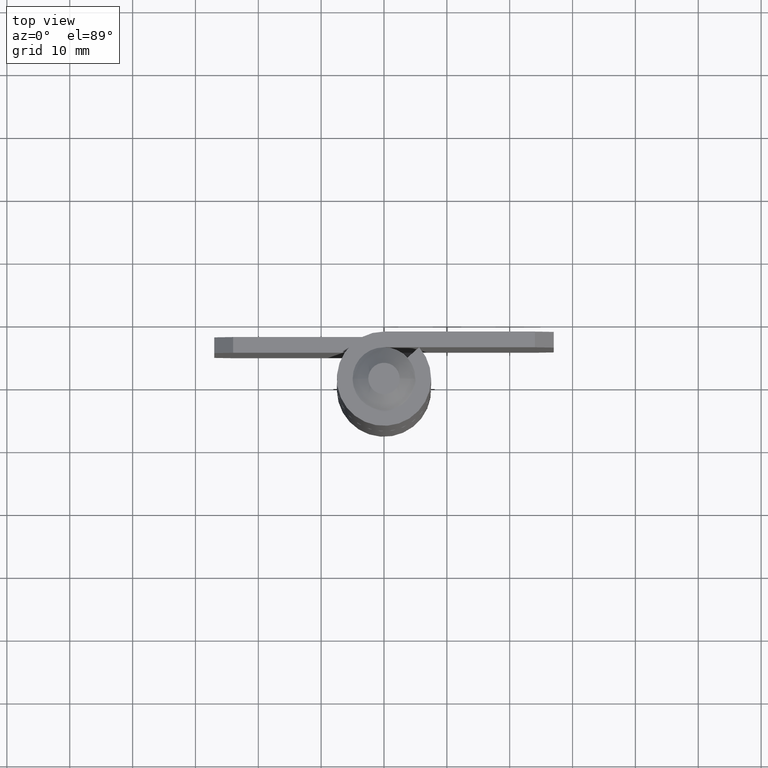
[diagram: clean part render]
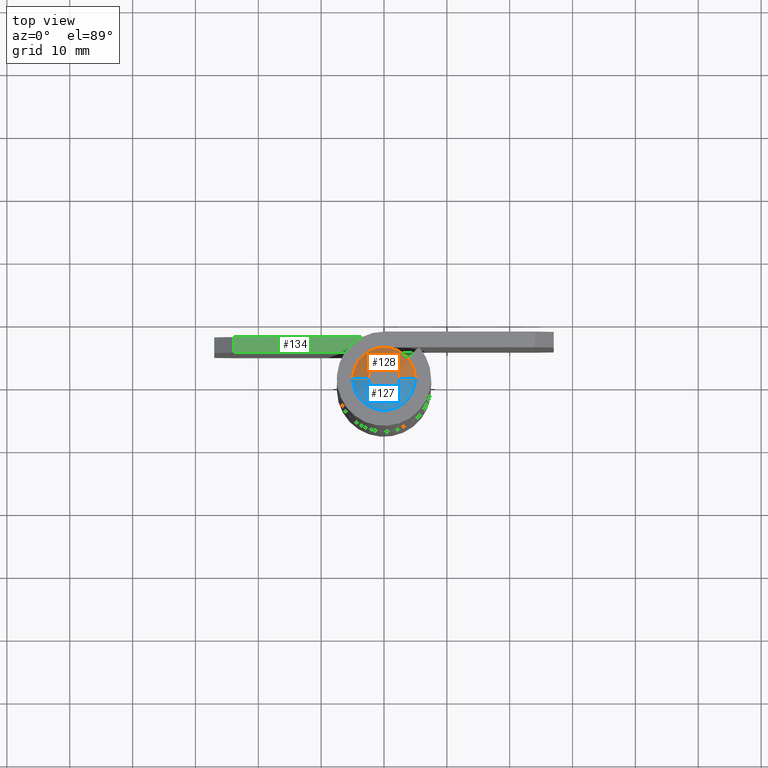
[diagram: same view with three faces highlighted in distinct colors, each labeled with its STEP entity id]
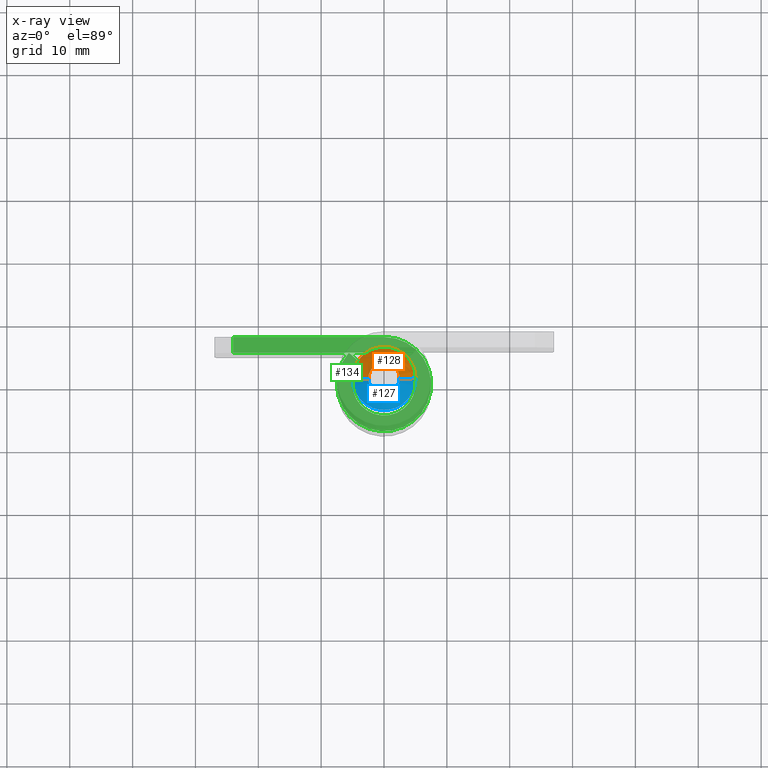
[diagram: x-ray of the same camera — body ghosted, the three highlighted faces saturated]
A machine part, top view with three faces highlighted in distinct colors.
The next image is the same camera in x-ray (body ghosted, the three faces saturated) — at least one of them is partly hidden behind the body in this view.
Their STEP definitions:

[orange] entity #128 — the highlighted face is a freeform B-spline surface patch.
#128=ADVANCED_FACE('',(#300),#299,.T.);
#299=( BOUNDED_SURFACE() B_SPLINE_SURFACE( 2,1,((#507,#508),(#509,#510),(#511,#512),(#513,#514),(#515,#516)), .UNSPECIFIED.,.F.,.F.,.F.) B_SPLINE_SURFACE_WITH_KNOTS((3,2,3),(2,2),(0.00000000000E+000,5.00000000000E-001,1.00000000000E+000),(0.00000000000E+000,1.00000000000E+000), .UNSPECIFIED. ) GEOMETRIC_REPRESENTATION_ITEM() RATIONAL_B_SPLINE_SURFACE(((1.00000000000E+000,1.00000000000E+000),(7.07106781187E-001,7.07106781187E-001),(1.00000000000E+000,1.00000000000E+000),(7.07106781187E-001,7.07106781187E-001),(1.00000000000E+000,1.00000000000E+000))) REPRESENTATION_ITEM('') SURFACE() );
#300=FACE_OUTER_BOUND('',#517,.T.);
#507=CARTESIAN_POINT('',(0.00000000000E+000,0.00000000000E+000,5.40000000000E+001));
#508=CARTESIAN_POINT('',(-7.07106781187E+000,8.65956056235E-016,4.83431457505E+001));
#509=CARTESIAN_POINT('',(0.00000000000E+000,0.00000000000E+000,5.40000000000E+001));
#510=CARTESIAN_POINT('',(-7.07106781187E+000,7.07106781187E+000,4.83431457505E+001));
#511=CARTESIAN_POINT('',(0.00000000000E+000,0.00000000000E+000,5.40000000000E+001));
#512=CARTESIAN_POINT('',(4.32978028118E-016,7.07106781187E+000,4.83431457505E+001));
#513=CARTESIAN_POINT('',(0.00000000000E+000,0.00000000000E+000,5.40000000000E+001));
#514=CARTESIAN_POINT('',(7.07106781187E+000,7.07106781187E+000,4.83431457505E+001));
#515=CARTESIAN_POINT('',(0.00000000000E+000,0.00000000000E+000,5.40000000000E+001));
#516=CARTESIAN_POINT('',(7.07106781187E+000,0.00000000000E+000,4.83431457505E+001));
#517=EDGE_LOOP('',(#644,#645,#646,#647,#648,#649));
#644=ORIENTED_EDGE('',*,*,#709,.F.);
#645=ORIENTED_EDGE('',*,*,#737,.T.);
#646=ORIENTED_EDGE('',*,*,#714,.T.);
#647=ORIENTED_EDGE('',*,*,#735,.F.);
#648=ORIENTED_EDGE('',*,*,#716,.T.);
#649=ORIENTED_EDGE('',*,*,#738,.F.);
#709=EDGE_CURVE('',#834,#833,#841,.T.);
#714=EDGE_CURVE('',#875,#868,#876,.T.);
#716=EDGE_CURVE('',#847,#882,#889,.T.);
#735=EDGE_CURVE('',#847,#868,#1011,.T.);
#737=EDGE_CURVE('',#834,#875,#1023,.T.);
#738=EDGE_CURVE('',#833,#882,#1029,.T.);
#833=VERTEX_POINT('',#1237);
#834=VERTEX_POINT('',#1238);
#841=CIRCLE('',#1246,2.50000000000E+000);
#847=VERTEX_POINT('',#1247);
#868=VERTEX_POINT('',#1260);
#875=VERTEX_POINT('',#1264);
#876=CIRCLE('',#1268,5.00000000000E+000);
#882=VERTEX_POINT('',#1269);
#889=CIRCLE('',#1277,5.00000000000E+000);
#1011=CIRCLE('',#1346,5.00000000000E+000);
#1023=(BOUNDED_CURVE() B_SPLINE_CURVE(1,(#1349,#1350),.UNSPECIFIED.,.F.,.F.) B_SPLINE_CURVE_WITH_KNOTS((2,2),(3.53553391166E-001,7.07106780828E-001),.UNSPECIFIED.) CURVE() GEOMETRIC_REPRESENTATION_ITEM() RATIONAL_B_SPLINE_CURVE((1.00000000000E+000,1.00000000000E+000)) REPRESENTATION_ITEM('') );
#1029=(BOUNDED_CURVE() B_SPLINE_CURVE(1,(#1351,#1352),.UNSPECIFIED.,.F.,.F.) B_SPLINE_CURVE_WITH_KNOTS((2,2),(3.53553383113E-001,7.07106605949E-001),.UNSPECIFIED.) CURVE() GEOMETRIC_REPRESENTATION_ITEM() RATIONAL_B_SPLINE_CURVE((7.50000000000E-001,7.50000000000E-001)) REPRESENTATION_ITEM('') );
#1237=CARTESIAN_POINT('',(-2.50000000000E+000,0.00000000000E+000,5.20000000000E+001));
#1238=CARTESIAN_POINT('',(2.50000000000E+000,2.96059473233E-016,5.20000000000E+001));
#1243=CARTESIAN_POINT('',(0.00000000000E+000,0.00000000000E+000,5.20000000000E+001));
#1244=DIRECTION('',(0.00000000000E+000,0.00000000000E+000,1.00000000000E+000));
#1245=DIRECTION('',(-1.00000000000E+000,-1.22460635382E-016,0.00000000000E+000));
#1246=AXIS2_PLACEMENT_3D('',#1243,#1244,#1245);
#1247=CARTESIAN_POINT('',(0.00000000000E+000,5.00000000000E+000,5.00000000000E+001));
#1260=CARTESIAN_POINT('',(3.72736168215E+000,3.33268283676E+000,5.00000000000E+001));
#1264=CARTESIAN_POINT('',(5.00000000000E+000,-1.95942406596E-008,5.00000000000E+001));
#1265=CARTESIAN_POINT('',(0.00000000000E+000,0.00000000000E+000,5.00000000000E+001));
#1266=DIRECTION('',(0.00000000000E+000,0.00000000000E+000,1.00000000000E+000));
#1267=DIRECTION('',(1.83690953073E-016,1.00000000000E+000,-0.00000000000E+000));
#1268=AXIS2_PLACEMENT_3D('',#1265,#1266,#1267);
#1269=CARTESIAN_POINT('',(-4.99999997307E+000,-5.18931670672E-004,5.00000000000E+001));
#1274=CARTESIAN_POINT('',(0.00000000000E+000,0.00000000000E+000,5.00000000000E+001));
#1275=DIRECTION('',(0.00000000000E+000,0.00000000000E+000,1.00000000000E+000));
#1276=DIRECTION('',(1.83690953073E-016,1.00000000000E+000,-0.00000000000E+000));
#1277=AXIS2_PLACEMENT_3D('',#1274,#1275,#1276);
#1343=CARTESIAN_POINT('',(0.00000000000E+000,0.00000000000E+000,5.00000000000E+001));
#1344=DIRECTION('',(0.00000000000E+000,0.00000000000E+000,-1.00000000000E+000));
#1345=DIRECTION('',(-1.00000000000E+000,-0.00000000000E+000,-0.00000000000E+000));
#1346=AXIS2_PLACEMENT_3D('',#1343,#1344,#1345);
#1349=CARTESIAN_POINT('',(2.50000000405E+000,-6.12303177903E-016,5.19999999968E+001));
#1350=CARTESIAN_POINT('',(4.99999999747E+000,-1.22460635320E-015,5.00000000020E+001));
#1351=CARTESIAN_POINT('',(-2.49999994711E+000,7.32709798551E-016,5.20000000423E+001));
#1352=CARTESIAN_POINT('',(-4.99999876089E+000,1.46541926494E-015,5.00000009913E+001));

[blue] entity #127 — the highlighted face is a freeform B-spline surface patch.
#127=ADVANCED_FACE('',(#290),#289,.T.);
#289=( BOUNDED_SURFACE() B_SPLINE_SURFACE( 2,1,((#496,#497),(#498,#499),(#500,#501),(#502,#503),(#504,#505)), .UNSPECIFIED.,.F.,.F.,.F.) B_SPLINE_SURFACE_WITH_KNOTS((3,2,3),(2,2),(0.00000000000E+000,5.00000000000E-001,1.00000000000E+000),(0.00000000000E+000,1.00000000000E+000), .UNSPECIFIED. ) GEOMETRIC_REPRESENTATION_ITEM() RATIONAL_B_SPLINE_SURFACE(((1.00000000000E+000,1.00000000000E+000),(7.07106781187E-001,7.07106781187E-001),(1.00000000000E+000,1.00000000000E+000),(7.07106781187E-001,7.07106781187E-001),(1.00000000000E+000,1.00000000000E+000))) REPRESENTATION_ITEM('') SURFACE() );
#290=FACE_OUTER_BOUND('',#506,.T.);
#496=CARTESIAN_POINT('',(0.00000000000E+000,0.00000000000E+000,5.40000000000E+001));
#497=CARTESIAN_POINT('',(7.07106781187E+000,-1.73191211247E-015,4.83431457505E+001));
#498=CARTESIAN_POINT('',(0.00000000000E+000,0.00000000000E+000,5.40000000000E+001));
#499=CARTESIAN_POINT('',(7.07106781187E+000,-7.07106781187E+000,4.83431457505E+001));
#500=CARTESIAN_POINT('',(0.00000000000E+000,0.00000000000E+000,5.40000000000E+001));
#501=CARTESIAN_POINT('',(-1.29893408435E-015,-7.07106781187E+000,4.83431457505E+001));
#502=CARTESIAN_POINT('',(0.00000000000E+000,0.00000000000E+000,5.40000000000E+001));
#503=CARTESIAN_POINT('',(-7.07106781187E+000,-7.07106781187E+000,4.83431457505E+001));
#504=CARTESIAN_POINT('',(0.00000000000E+000,0.00000000000E+000,5.40000000000E+001));
#505=CARTESIAN_POINT('',(-7.07106781187E+000,8.65956056235E-016,4.83431457505E+001));
#506=EDGE_LOOP('',(#640,#641,#642,#643));
#640=ORIENTED_EDGE('',*,*,#715,.T.);
#641=ORIENTED_EDGE('',*,*,#737,.F.);
#642=ORIENTED_EDGE('',*,*,#708,.F.);
#643=ORIENTED_EDGE('',*,*,#738,.T.);
#708=EDGE_CURVE('',#833,#834,#835,.T.);
#715=EDGE_CURVE('',#882,#875,#883,.T.);
#737=EDGE_CURVE('',#834,#875,#1023,.T.);
#738=EDGE_CURVE('',#833,#882,#1029,.T.);
#833=VERTEX_POINT('',#1237);
#834=VERTEX_POINT('',#1238);
#835=CIRCLE('',#1242,2.50000000000E+000);
#875=VERTEX_POINT('',#1264);
#882=VERTEX_POINT('',#1269);
#883=CIRCLE('',#1273,5.00000000000E+000);
#1023=(BOUNDED_CURVE() B_SPLINE_CURVE(1,(#1349,#1350),.UNSPECIFIED.,.F.,.F.) B_SPLINE_CURVE_WITH_KNOTS((2,2),(3.53553391166E-001,7.07106780828E-001),.UNSPECIFIED.) CURVE() GEOMETRIC_REPRESENTATION_ITEM() RATIONAL_B_SPLINE_CURVE((1.00000000000E+000,1.00000000000E+000)) REPRESENTATION_ITEM('') );
#1029=(BOUNDED_CURVE() B_SPLINE_CURVE(1,(#1351,#1352),.UNSPECIFIED.,.F.,.F.) B_SPLINE_CURVE_WITH_KNOTS((2,2),(3.53553383113E-001,7.07106605949E-001),.UNSPECIFIED.) CURVE() GEOMETRIC_REPRESENTATION_ITEM() RATIONAL_B_SPLINE_CURVE((7.50000000000E-001,7.50000000000E-001)) REPRESENTATION_ITEM('') );
#1237=CARTESIAN_POINT('',(-2.50000000000E+000,0.00000000000E+000,5.20000000000E+001));
#1238=CARTESIAN_POINT('',(2.50000000000E+000,2.96059473233E-016,5.20000000000E+001));
#1239=CARTESIAN_POINT('',(0.00000000000E+000,0.00000000000E+000,5.20000000000E+001));
#1240=DIRECTION('',(0.00000000000E+000,0.00000000000E+000,1.00000000000E+000));
#1241=DIRECTION('',(-1.00000000000E+000,-1.22460635382E-016,0.00000000000E+000));
#1242=AXIS2_PLACEMENT_3D('',#1239,#1240,#1241);
#1264=CARTESIAN_POINT('',(5.00000000000E+000,-1.95942406596E-008,5.00000000000E+001));
#1269=CARTESIAN_POINT('',(-4.99999997307E+000,-5.18931670672E-004,5.00000000000E+001));
#1270=CARTESIAN_POINT('',(0.00000000000E+000,0.00000000000E+000,5.00000000000E+001));
#1271=DIRECTION('',(0.00000000000E+000,0.00000000000E+000,1.00000000000E+000));
#1272=DIRECTION('',(1.83690953073E-016,1.00000000000E+000,-0.00000000000E+000));
#1273=AXIS2_PLACEMENT_3D('',#1270,#1271,#1272);
#1349=CARTESIAN_POINT('',(2.50000000405E+000,-6.12303177903E-016,5.19999999968E+001));
#1350=CARTESIAN_POINT('',(4.99999999747E+000,-1.22460635320E-015,5.00000000020E+001));
#1351=CARTESIAN_POINT('',(-2.49999994711E+000,7.32709798551E-016,5.20000000423E+001));
#1352=CARTESIAN_POINT('',(-4.99999876089E+000,1.46541926494E-015,5.00000009913E+001));

[green] entity #134 — the highlighted planar face has unit normal (0, 0, -1).
#134=ADVANCED_FACE('',(#360),#359,.F.);
#359=PLANE('',#546);
#360=FACE_OUTER_BOUND('',#547,.T.);
#543=CARTESIAN_POINT('',(1.29468851000E+001,-1.29731095773E+001,-1.42108547152E-014));
#544=DIRECTION('',(-0.00000000000E+000,0.00000000000E+000,-1.00000000000E+000));
#545=DIRECTION('',(-1.00000000000E+000,0.00000000000E+000,0.00000000000E+000));
#546=AXIS2_PLACEMENT_3D('',#543,#544,#545);
#547=EDGE_LOOP('',(#674,#675,#676,#677,#678,#679));
#674=ORIENTED_EDGE('',*,*,#750,.F.);
#675=ORIENTED_EDGE('',*,*,#740,.T.);
#676=ORIENTED_EDGE('',*,*,#756,.F.);
#677=ORIENTED_EDGE('',*,*,#757,.F.);
#678=ORIENTED_EDGE('',*,*,#758,.F.);
#679=ORIENTED_EDGE('',*,*,#759,.T.);
#740=EDGE_CURVE('',#1043,#1035,#1044,.T.);
#750=EDGE_CURVE('',#1043,#1110,#1111,.T.);
#756=EDGE_CURVE('',#1150,#1035,#1151,.T.);
#757=EDGE_CURVE('',#1157,#1150,#1158,.T.);
#758=EDGE_CURVE('',#1164,#1157,#1165,.T.);
#759=EDGE_CURVE('',#1164,#1110,#1171,.T.);
#1035=VERTEX_POINT('',#1353);
#1043=VERTEX_POINT('',#1358);
#1044=LINE('',#1359,#1360);
#1110=VERTEX_POINT('',#1395);
#1111=LINE('',#1396,#1397);
#1150=VERTEX_POINT('',#1419);
#1151=LINE('',#1420,#1421);
#1157=VERTEX_POINT('',#1423);
#1158=CIRCLE('',#1427,5.00000000000E+000);
#1164=VERTEX_POINT('',#1428);
#1165=LINE('',#1429,#1430);
#1171=CIRCLE('',#1435,7.50000000000E+000);
#1353=CARTESIAN_POINT('',(-2.40000000000E+001,5.00000000000E+000,-1.42108547152E-014));
#1358=CARTESIAN_POINT('',(-2.40000000000E+001,7.50000000000E+000,-1.42108547152E-014));
#1359=CARTESIAN_POINT('',(-2.40000000000E+001,7.50000000000E+000,-1.42108547152E-014));
#1360=VECTOR('',#1361,2.50000000000E+000);
#1361=DIRECTION('',(0.00000000000E+000,-1.00000000000E+000,0.00000000000E+000));
#1395=CARTESIAN_POINT('',(0.00000000000E+000,7.50000000000E+000,0.00000000000E+000));
#1396=CARTESIAN_POINT('',(-2.40000000000E+001,7.50000000000E+000,-1.42108547152E-014));
#1397=VECTOR('',#1398,2.40000000000E+001);
#1398=DIRECTION('',(1.00000000000E+000,0.00000000000E+000,0.00000000000E+000));
#1419=CARTESIAN_POINT('',(3.06161699787E-016,5.00000000000E+000,0.00000000000E+000));
#1420=CARTESIAN_POINT('',(3.06161699787E-016,5.00000000000E+000,-1.42108547152E-014));
#1421=VECTOR('',#1422,2.40000000000E+001);
#1422=DIRECTION('',(-1.00000000000E+000,0.00000000000E+000,0.00000000000E+000));
#1423=CARTESIAN_POINT('',(-3.72736168215E+000,3.33268283676E+000,0.00000000000E+000));
#1424=CARTESIAN_POINT('',(0.00000000000E+000,0.00000000000E+000,0.00000000000E+000));
#1425=DIRECTION('',(0.00000000000E+000,-0.00000000000E+000,1.00000000000E+000));
#1426=DIRECTION('',(-1.83690953073E-016,1.00000000000E+000,0.00000000000E+000));
#1427=AXIS2_PLACEMENT_3D('',#1424,#1425,#1426);
#1428=CARTESIAN_POINT('',(-5.59104252323E+000,4.99902425514E+000,0.00000000000E+000));
#1429=CARTESIAN_POINT('',(-5.59104252323E+000,4.99902425514E+000,-1.42108547152E-014));
#1430=VECTOR('',#1431,2.50000000000E+000);
#1431=DIRECTION('',(7.45472336430E-001,-6.66536567352E-001,0.00000000000E+000));
#1432=CARTESIAN_POINT('',(0.00000000000E+000,0.00000000000E+000,0.00000000000E+000));
#1433=DIRECTION('',(0.00000000000E+000,-0.00000000000E+000,1.00000000000E+000));
#1434=DIRECTION('',(-1.83690953073E-016,1.00000000000E+000,0.00000000000E+000));
#1435=AXIS2_PLACEMENT_3D('',#1432,#1433,#1434);